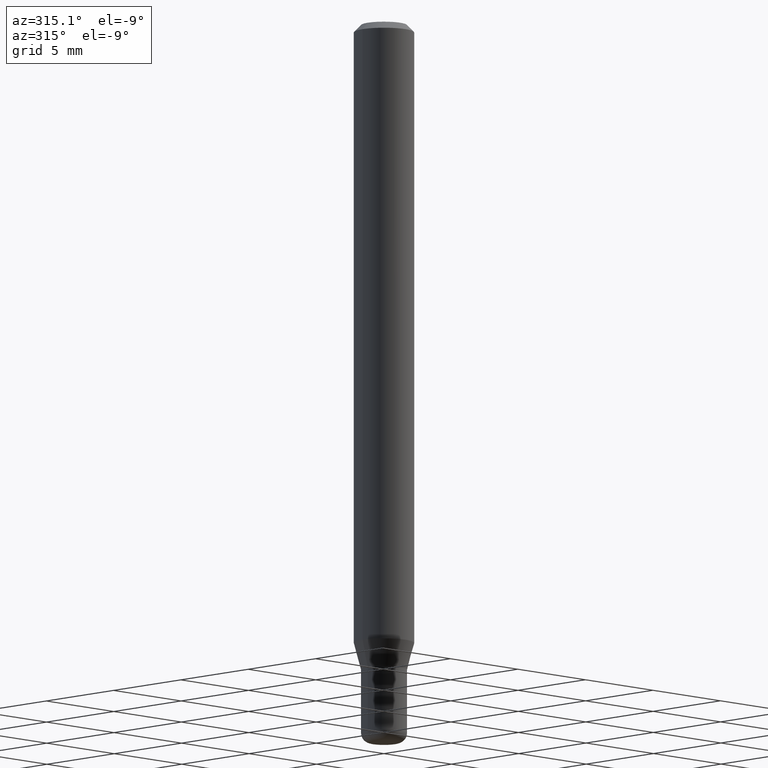
[diagram: clean part render]
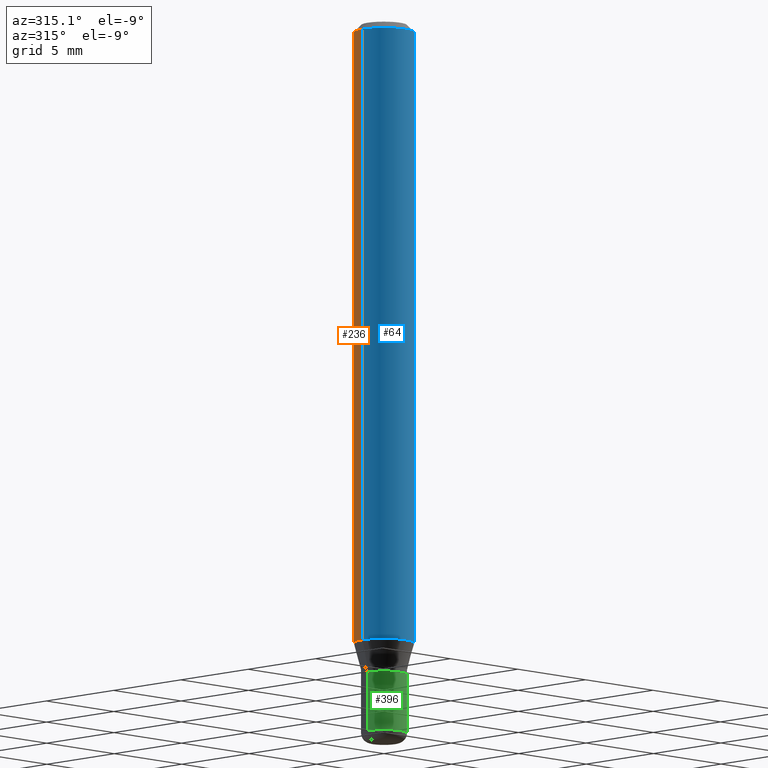
[diagram: same view with three faces highlighted in distinct colors, each labeled with its STEP entity id]
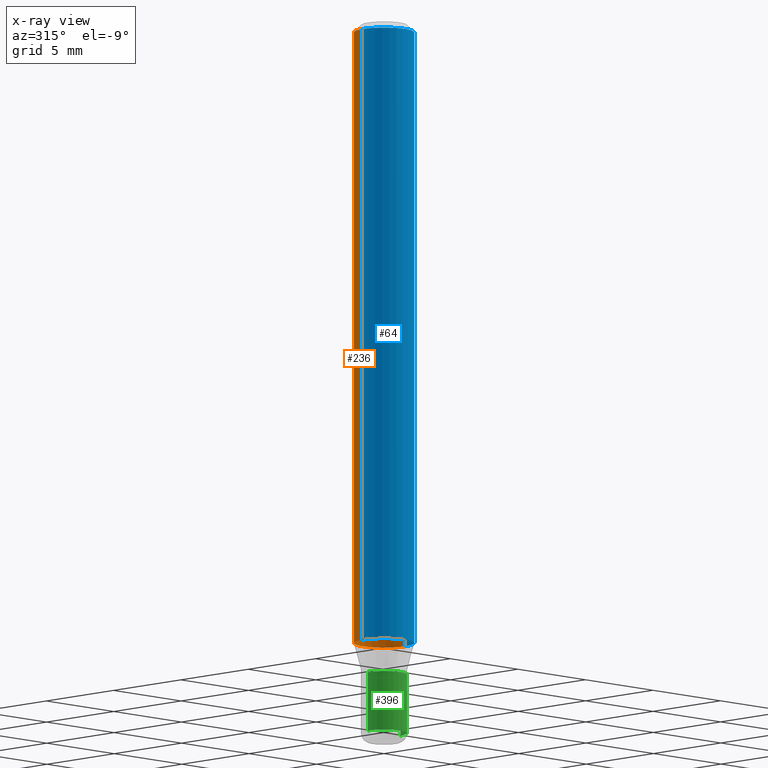
[diagram: x-ray of the same camera — body ghosted, the three highlighted faces saturated]
A machine part, auxiliary view with three faces highlighted in distinct colors.
The next image is the same camera in x-ray (body ghosted, the three faces saturated) — at least one of them is partly hidden behind the body in this view.
Their STEP definitions:

[orange] entity #236 — the highlighted cylindrical surface (edge-blend (fillet) strip) has radius 1.5875 mm, axis along (-0, 0, 1).
#18 = VERTEX_POINT ( 'NONE', #220 ) ;
#28 = CARTESIAN_POINT ( 'NONE',  ( -0.06250000000000000000, -1.836754559110020621E-15, -0.01499999999999970281 ) ) ;
#32 = CIRCLE ( 'NONE', #134, 0.06250000000000000000 ) ;
#40 = DIRECTION ( 'NONE',  ( 1.000000000000000000, -6.982962677686262766E-15, 0.000000000000000000 ) ) ;
#43 = CARTESIAN_POINT ( 'NONE',  ( 3.158370008839356445E-29, -4.509315317837521367E-15, -1.291519237886467275 ) ) ;
#68 = VERTEX_POINT ( 'NONE', #28 ) ;
#73 = DIRECTION ( 'NONE',  ( -2.445468806185136597E-29, 3.491481338843145583E-15, 1.000000000000000000 ) ) ;
#109 = VERTEX_POINT ( 'NONE', #132 ) ;
#125 = VERTEX_POINT ( 'NONE', #446 ) ;
#132 = CARTESIAN_POINT ( 'NONE',  ( 0.06250000000000000000, -4.945750485192912248E-15, -1.291519237886467275 ) ) ;
#134 = AXIS2_PLACEMENT_3D ( 'NONE', #43, #391, #40 ) ;
#135 = ORIENTED_EDGE ( 'NONE', *, *, #367, .T. ) ;
#147 = EDGE_LOOP ( 'NONE', ( #135, #403, #169, #260 ) ) ;
#168 = CARTESIAN_POINT ( 'NONE',  ( -0.06250000000000000000, 4.440892098500626162E-16, -3.074334431409316114E-30 ) ) ;
#169 = ORIENTED_EDGE ( 'NONE', *, *, #487, .F. ) ;
#190 = CARTESIAN_POINT ( 'NONE',  ( 0.06250000000000000000, -4.364351673553916694E-16, 3.047610484872459871E-30 ) ) ;
#213 = EDGE_CURVE ( 'NONE', #109, #125, #511, .T. ) ;
#220 = CARTESIAN_POINT ( 'NONE',  ( -0.06250000000000000000, -4.065226107987458751E-15, -1.291519237886467275 ) ) ;
#229 = DIRECTION ( 'NONE',  ( 1.000000000000000000, -6.982962677686266711E-15, 4.876176775795935793E-29 ) ) ;
#236 = ADVANCED_FACE ( 'NONE', ( #439 ), #388, .T. ) ;
#256 = AXIS2_PLACEMENT_3D ( 'NONE', #273, #73, #229 ) ;
#258 = LINE ( 'NONE', #168, #484 ) ;
#260 = ORIENTED_EDGE ( 'NONE', *, *, #213, .F. ) ;
#269 = VECTOR ( 'NONE', #312, 39.37007874015748143 ) ;
#273 = CARTESIAN_POINT ( 'NONE',  ( 0.000000000000000000, 0.000000000000000000, 0.000000000000000000 ) ) ;
#312 = DIRECTION ( 'NONE',  ( -2.445468806185136877E-29, 3.491481338843145188E-15, 1.000000000000000000 ) ) ;
#330 = CARTESIAN_POINT ( 'NONE',  ( 3.668203209277632395E-31, -5.237222008264614861E-17, -0.01499999999999970281 ) ) ;
#367 = EDGE_CURVE ( 'NONE', #109, #18, #32, .T. ) ;
#371 = DIRECTION ( 'NONE',  ( -2.445468806185136877E-29, 3.491481338843145188E-15, 1.000000000000000000 ) ) ;
#388 = CYLINDRICAL_SURFACE ( 'NONE', #256, 0.06250000000000000000 ) ;
#391 = DIRECTION ( 'NONE',  ( -2.445468806185136597E-29, 3.491481338843145583E-15, 1.000000000000000000 ) ) ;
#403 = ORIENTED_EDGE ( 'NONE', *, *, #518, .T. ) ;
#439 = FACE_OUTER_BOUND ( 'NONE', #147, .T. ) ;
#446 = CARTESIAN_POINT ( 'NONE',  ( 0.06250000000000000000, -4.888073874380378612E-16, -0.01499999999999970281 ) ) ;
#479 = AXIS2_PLACEMENT_3D ( 'NONE', #330, #488, #490 ) ;
#484 = VECTOR ( 'NONE', #371, 39.37007874015748143 ) ;
#485 = CIRCLE ( 'NONE', #479, 0.06250000000000000000 ) ;
#487 = EDGE_CURVE ( 'NONE', #125, #68, #485, .T. ) ;
#488 = DIRECTION ( 'NONE',  ( -2.445468806185136597E-29, 3.491481338843145583E-15, 1.000000000000000000 ) ) ;
#490 = DIRECTION ( 'NONE',  ( 1.000000000000000000, -6.982962677686266711E-15, 0.000000000000000000 ) ) ;
#511 = LINE ( 'NONE', #190, #269 ) ;
#518 = EDGE_CURVE ( 'NONE', #18, #68, #258, .T. ) ;

[blue] entity #64 — the highlighted cylindrical surface (edge-blend (fillet) strip) has radius 1.5875 mm, axis along (-0, 0, 1).
#15 = FACE_OUTER_BOUND ( 'NONE', #286, .T. ) ;
#18 = VERTEX_POINT ( 'NONE', #220 ) ;
#28 = CARTESIAN_POINT ( 'NONE',  ( -0.06250000000000000000, -1.836754559110020621E-15, -0.01499999999999970281 ) ) ;
#55 = DIRECTION ( 'NONE',  ( -2.445468806185136597E-29, 3.491481338843145583E-15, 1.000000000000000000 ) ) ;
#58 = CIRCLE ( 'NONE', #162, 0.06250000000000000000 ) ;
#64 = ADVANCED_FACE ( 'NONE', ( #15 ), #411, .T. ) ;
#68 = VERTEX_POINT ( 'NONE', #28 ) ;
#76 = CARTESIAN_POINT ( 'NONE',  ( 3.158370008839356445E-29, -4.509315317837521367E-15, -1.291519237886467275 ) ) ;
#83 = ORIENTED_EDGE ( 'NONE', *, *, #380, .F. ) ;
#98 = AXIS2_PLACEMENT_3D ( 'NONE', #290, #55, #209 ) ;
#109 = VERTEX_POINT ( 'NONE', #132 ) ;
#125 = VERTEX_POINT ( 'NONE', #446 ) ;
#132 = CARTESIAN_POINT ( 'NONE',  ( 0.06250000000000000000, -4.945750485192912248E-15, -1.291519237886467275 ) ) ;
#159 = DIRECTION ( 'NONE',  ( 1.000000000000000000, -6.982962677686262766E-15, 0.000000000000000000 ) ) ;
#162 = AXIS2_PLACEMENT_3D ( 'NONE', #282, #480, #357 ) ;
#168 = CARTESIAN_POINT ( 'NONE',  ( -0.06250000000000000000, 4.440892098500626162E-16, -3.074334431409316114E-30 ) ) ;
#190 = CARTESIAN_POINT ( 'NONE',  ( 0.06250000000000000000, -4.364351673553916694E-16, 3.047610484872459871E-30 ) ) ;
#209 = DIRECTION ( 'NONE',  ( 1.000000000000000000, -6.982962677686266711E-15, 4.876176775795935793E-29 ) ) ;
#213 = EDGE_CURVE ( 'NONE', #109, #125, #511, .T. ) ;
#220 = CARTESIAN_POINT ( 'NONE',  ( -0.06250000000000000000, -4.065226107987458751E-15, -1.291519237886467275 ) ) ;
#258 = LINE ( 'NONE', #168, #484 ) ;
#269 = VECTOR ( 'NONE', #312, 39.37007874015748143 ) ;
#282 = CARTESIAN_POINT ( 'NONE',  ( 3.668203209277632395E-31, -5.237222008264614861E-17, -0.01499999999999970281 ) ) ;
#286 = EDGE_LOOP ( 'NONE', ( #497, #370, #441, #83 ) ) ;
#290 = CARTESIAN_POINT ( 'NONE',  ( 0.000000000000000000, 0.000000000000000000, 0.000000000000000000 ) ) ;
#307 = EDGE_CURVE ( 'NONE', #18, #109, #453, .T. ) ;
#312 = DIRECTION ( 'NONE',  ( -2.445468806185136877E-29, 3.491481338843145188E-15, 1.000000000000000000 ) ) ;
#329 = AXIS2_PLACEMENT_3D ( 'NONE', #76, #348, #159 ) ;
#348 = DIRECTION ( 'NONE',  ( -2.445468806185136597E-29, 3.491481338843145583E-15, 1.000000000000000000 ) ) ;
#357 = DIRECTION ( 'NONE',  ( 1.000000000000000000, -6.982962677686266711E-15, 0.000000000000000000 ) ) ;
#370 = ORIENTED_EDGE ( 'NONE', *, *, #307, .T. ) ;
#371 = DIRECTION ( 'NONE',  ( -2.445468806185136877E-29, 3.491481338843145188E-15, 1.000000000000000000 ) ) ;
#380 = EDGE_CURVE ( 'NONE', #68, #125, #58, .T. ) ;
#411 = CYLINDRICAL_SURFACE ( 'NONE', #98, 0.06250000000000000000 ) ;
#441 = ORIENTED_EDGE ( 'NONE', *, *, #213, .T. ) ;
#446 = CARTESIAN_POINT ( 'NONE',  ( 0.06250000000000000000, -4.888073874380378612E-16, -0.01499999999999970281 ) ) ;
#453 = CIRCLE ( 'NONE', #329, 0.06250000000000000000 ) ;
#480 = DIRECTION ( 'NONE',  ( -2.445468806185136597E-29, 3.491481338843145583E-15, 1.000000000000000000 ) ) ;
#484 = VECTOR ( 'NONE', #371, 39.37007874015748143 ) ;
#497 = ORIENTED_EDGE ( 'NONE', *, *, #518, .F. ) ;
#511 = LINE ( 'NONE', #190, #269 ) ;
#518 = EDGE_CURVE ( 'NONE', #18, #68, #258, .T. ) ;

[green] entity #396 — the highlighted cylindrical surface (edge-blend (fillet) strip) has radius 1.2065 mm, axis along (-0, 0, 1).
#23 = EDGE_CURVE ( 'NONE', #67, #298, #418, .T. ) ;
#25 = ORIENTED_EDGE ( 'NONE', *, *, #23, .F. ) ;
#44 = DIRECTION ( 'NONE',  ( -2.445468806185136877E-29, 3.491481338843145188E-15, 1.000000000000000000 ) ) ;
#53 = DIRECTION ( 'NONE',  ( -2.445468806185136877E-29, 3.491481338843145188E-15, 1.000000000000000000 ) ) ;
#67 = VERTEX_POINT ( 'NONE', #376 ) ;
#80 = DIRECTION ( 'NONE',  ( -2.445468806185136597E-29, 3.491481338843145583E-15, 1.000000000000000000 ) ) ;
#82 = CARTESIAN_POINT ( 'NONE',  ( 0.04749999999999999362, -5.071376644669668238E-15, -1.357500000000000151 ) ) ;
#94 = VERTEX_POINT ( 'NONE', #302 ) ;
#113 = LINE ( 'NONE', #228, #246 ) ;
#120 = CARTESIAN_POINT ( 'NONE',  ( 3.319723904396323737E-29, -4.739685917479570727E-15, -1.357500000000000151 ) ) ;
#130 = EDGE_CURVE ( 'NONE', #366, #298, #408, .T. ) ;
#158 = FACE_OUTER_BOUND ( 'NONE', #259, .T. ) ;
#181 = ORIENTED_EDGE ( 'NONE', *, *, #363, .F. ) ;
#198 = DIRECTION ( 'NONE',  ( 1.000000000000000000, -6.982962677686258033E-15, 0.000000000000000000 ) ) ;
#211 = AXIS2_PLACEMENT_3D ( 'NONE', #281, #507, #431 ) ;
#216 = AXIS2_PLACEMENT_3D ( 'NONE', #120, #80, #365 ) ;
#228 = CARTESIAN_POINT ( 'NONE',  ( -0.04750000000000000749, 3.375077994860476415E-16, -2.336494167871080260E-30 ) ) ;
#232 = CARTESIAN_POINT ( 'NONE',  ( 3.619293833154002365E-29, -5.167392381487854879E-15, -1.479999999999999982 ) ) ;
#243 = ORIENTED_EDGE ( 'NONE', *, *, #130, .T. ) ;
#246 = VECTOR ( 'NONE', #44, 39.37007874015748143 ) ;
#259 = EDGE_LOOP ( 'NONE', ( #181, #324, #243, #25 ) ) ;
#277 = CYLINDRICAL_SURFACE ( 'NONE', #211, 0.04750000000000000749 ) ;
#281 = CARTESIAN_POINT ( 'NONE',  ( 0.000000000000000000, 0.000000000000000000, 0.000000000000000000 ) ) ;
#284 = CARTESIAN_POINT ( 'NONE',  ( 0.04750000000000000749, -3.316907271900977082E-16, 2.316183968503069432E-30 ) ) ;
#298 = VERTEX_POINT ( 'NONE', #82 ) ;
#302 = CARTESIAN_POINT ( 'NONE',  ( -0.04750000000000002137, -4.616031349997665704E-15, -1.479999999999999982 ) ) ;
#320 = DIRECTION ( 'NONE',  ( -2.445468806185136597E-29, 3.491481338843145583E-15, 1.000000000000000000 ) ) ;
#324 = ORIENTED_EDGE ( 'NONE', *, *, #379, .T. ) ;
#363 = EDGE_CURVE ( 'NONE', #94, #67, #113, .T. ) ;
#365 = DIRECTION ( 'NONE',  ( 1.000000000000000000, -6.982962677686261977E-15, 0.000000000000000000 ) ) ;
#366 = VERTEX_POINT ( 'NONE', #399 ) ;
#368 = VECTOR ( 'NONE', #53, 39.37007874015748143 ) ;
#376 = CARTESIAN_POINT ( 'NONE',  ( -0.04749999999999999362, -4.616031349997665704E-15, -1.357500000000000151 ) ) ;
#378 = CIRCLE ( 'NONE', #386, 0.04750000000000002137 ) ;
#379 = EDGE_CURVE ( 'NONE', #94, #366, #378, .T. ) ;
#386 = AXIS2_PLACEMENT_3D ( 'NONE', #232, #320, #198 ) ;
#396 = ADVANCED_FACE ( 'NONE', ( #158 ), #277, .T. ) ;
#399 = CARTESIAN_POINT ( 'NONE',  ( 0.04750000000000002137, -5.499083108677952390E-15, -1.479999999999999982 ) ) ;
#408 = LINE ( 'NONE', #284, #368 ) ;
#418 = CIRCLE ( 'NONE', #216, 0.04749999999999999362 ) ;
#431 = DIRECTION ( 'NONE',  ( 1.000000000000000000, -6.982962677686266711E-15, 4.876176775795934672E-29 ) ) ;
#507 = DIRECTION ( 'NONE',  ( -2.445468806185136597E-29, 3.491481338843145583E-15, 1.000000000000000000 ) ) ;